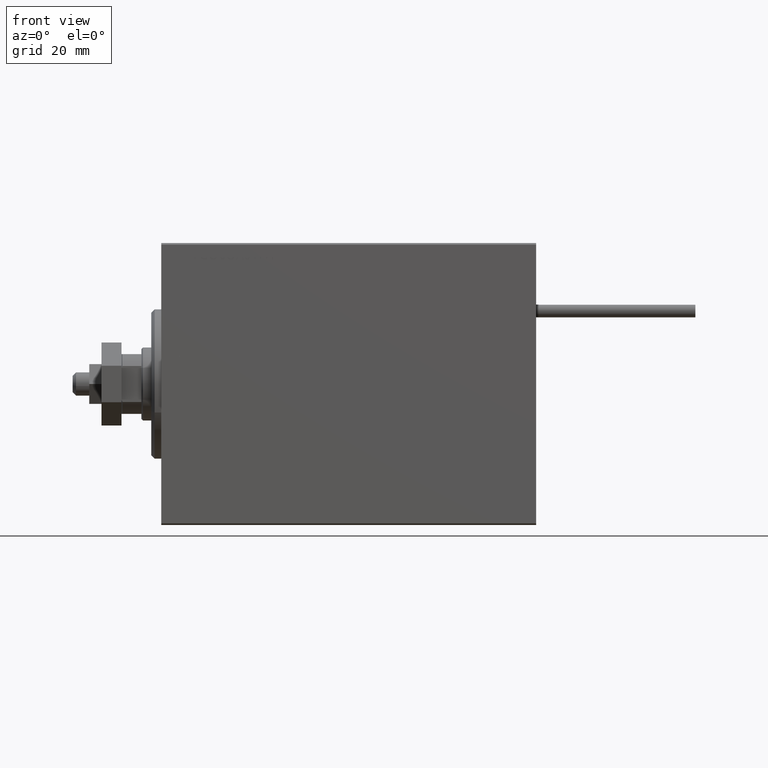
[diagram: clean part render]
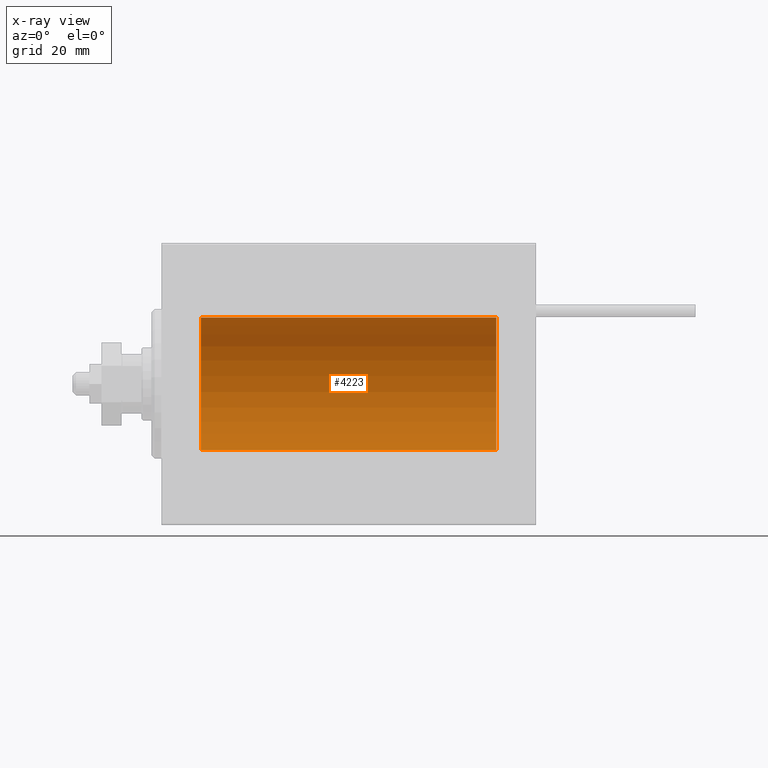
[diagram: x-ray — body ghosted, one internal face saturated and labeled with its STEP entity id]
A machine part, front view, then the same camera in x-ray: the body is ghosted and one INTERNAL B-rep face — a face not visible from any outside direction — is saturated and labeled: STEP entity #4223.
In plain terms, the highlighted cylindrical surface (partial cylindrical patch) has radius 20 mm, axis along (-1, -0, -0).
Its self-contained STEP definition (entity closure, byte-faithful):
#411 = EDGE_CURVE ( 'NONE', #42788, #17837, #7691, .T. ) ;
#1357 = VERTEX_POINT ( 'NONE', #39229 ) ;
#1724 = VERTEX_POINT ( 'NONE', #41859 ) ;
#3360 = ORIENTED_EDGE ( 'NONE', *, *, #411, .F. ) ;
#4223 = ADVANCED_FACE ( 'NONE', ( #9909 ), #29431, .F. ) ;
#5153 = EDGE_CURVE ( 'NONE', #1724, #1357, #18015, .T. ) ;
#6617 = DIRECTION ( 'NONE',  ( 0.000000000000000000, 0.000000000000000000, 1.000000000000000000 ) ) ;
#7691 = LINE ( 'NONE', #23150, #11834 ) ;
#9323 = CARTESIAN_POINT ( 'NONE',  ( 101.0000000000000000, 2.449293598294706513E-15, -20.00000000000000000 ) ) ;
#9665 = ORIENTED_EDGE ( 'NONE', *, *, #21386, .T. ) ;
#9909 = FACE_OUTER_BOUND ( 'NONE', #43478, .T. ) ;
#10836 = CARTESIAN_POINT ( 'NONE',  ( 11.99999999999999645, 0.000000000000000000, 0.000000000000000000 ) ) ;
#10938 = CARTESIAN_POINT ( 'NONE',  ( 11.99999999999999645, 2.449293598294706513E-15, -20.00000000000000000 ) ) ;
#11409 = CIRCLE ( 'NONE', #48680, 20.00000000000000000 ) ;
#11834 = VECTOR ( 'NONE', #19592, 1000.000000000000000 ) ;
#12086 = ORIENTED_EDGE ( 'NONE', *, *, #5153, .T. ) ;
#17837 = VERTEX_POINT ( 'NONE', #10938 ) ;
#18015 = LINE ( 'NONE', #26135, #23220 ) ;
#18440 = DIRECTION ( 'NONE',  ( -1.000000000000000000, 0.000000000000000000, 0.000000000000000000 ) ) ;
#19592 = DIRECTION ( 'NONE',  ( -1.000000000000000000, -0.000000000000000000, -0.000000000000000000 ) ) ;
#21386 = EDGE_CURVE ( 'NONE', #1357, #17837, #43560, .T. ) ;
#23150 = CARTESIAN_POINT ( 'NONE',  ( 101.0000000000000000, 2.449293598294706513E-15, -20.00000000000000000 ) ) ;
#23188 = DIRECTION ( 'NONE',  ( 0.000000000000000000, 0.000000000000000000, 1.000000000000000000 ) ) ;
#23220 = VECTOR ( 'NONE', #33985, 1000.000000000000000 ) ;
#24130 = AXIS2_PLACEMENT_3D ( 'NONE', #10836, #18440, #46304 ) ;
#26135 = CARTESIAN_POINT ( 'NONE',  ( 101.0000000000000000, 0.000000000000000000, 20.00000000000000000 ) ) ;
#29431 = CYLINDRICAL_SURFACE ( 'NONE', #36968, 20.00000000000000000 ) ;
#33985 = DIRECTION ( 'NONE',  ( -1.000000000000000000, -0.000000000000000000, -0.000000000000000000 ) ) ;
#34833 = ORIENTED_EDGE ( 'NONE', *, *, #49183, .F. ) ;
#35836 = CARTESIAN_POINT ( 'NONE',  ( 101.0000000000000000, 0.000000000000000000, 0.000000000000000000 ) ) ;
#36968 = AXIS2_PLACEMENT_3D ( 'NONE', #41323, #45624, #6617 ) ;
#39229 = CARTESIAN_POINT ( 'NONE',  ( 11.99999999999999645, 0.000000000000000000, 20.00000000000000000 ) ) ;
#41323 = CARTESIAN_POINT ( 'NONE',  ( 101.0000000000000000, 0.000000000000000000, 0.000000000000000000 ) ) ;
#41859 = CARTESIAN_POINT ( 'NONE',  ( 101.0000000000000000, 0.000000000000000000, 20.00000000000000000 ) ) ;
#42788 = VERTEX_POINT ( 'NONE', #9323 ) ;
#43478 = EDGE_LOOP ( 'NONE', ( #3360, #34833, #12086, #9665 ) ) ;
#43560 = CIRCLE ( 'NONE', #24130, 20.00000000000000000 ) ;
#45624 = DIRECTION ( 'NONE',  ( -1.000000000000000000, -0.000000000000000000, -0.000000000000000000 ) ) ;
#46304 = DIRECTION ( 'NONE',  ( 0.000000000000000000, 0.000000000000000000, 1.000000000000000000 ) ) ;
#47490 = DIRECTION ( 'NONE',  ( -1.000000000000000000, 0.000000000000000000, 0.000000000000000000 ) ) ;
#48680 = AXIS2_PLACEMENT_3D ( 'NONE', #35836, #47490, #23188 ) ;
#49183 = EDGE_CURVE ( 'NONE', #1724, #42788, #11409, .T. ) ;